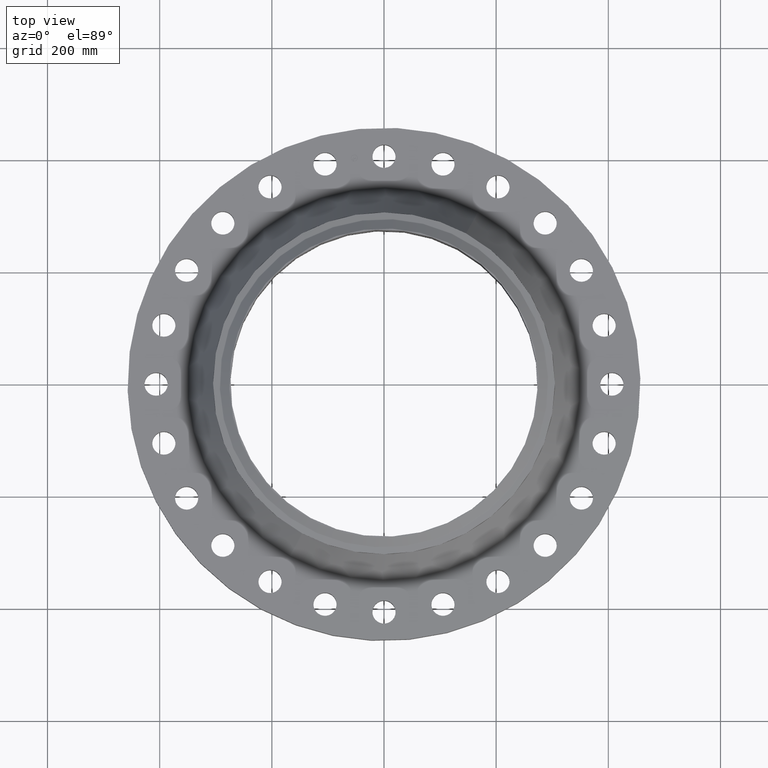
[diagram: clean part render]
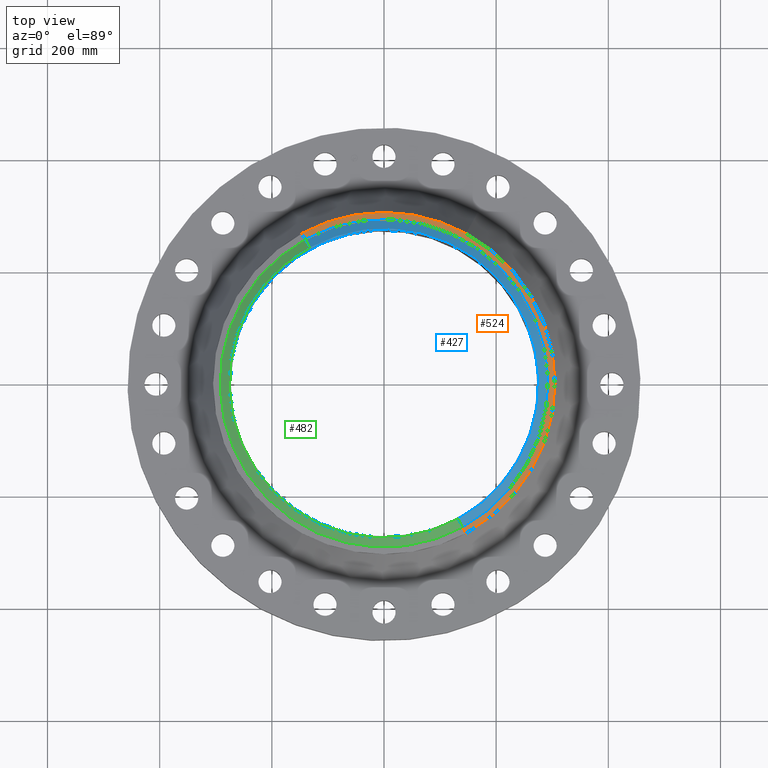
[diagram: same view with three faces highlighted in distinct colors, each labeled with its STEP entity id]
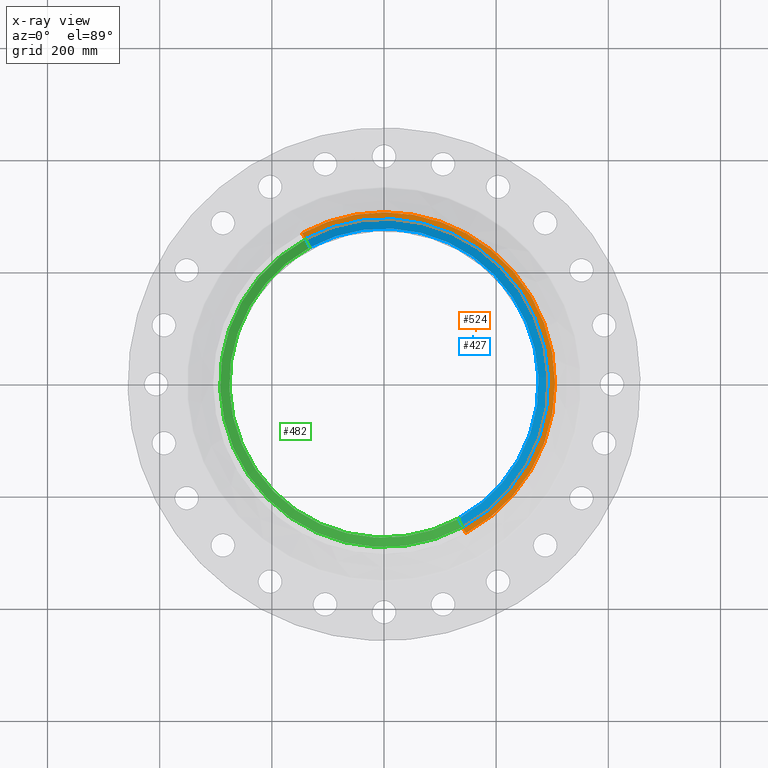
[diagram: x-ray of the same camera — body ghosted, the three highlighted faces saturated]
A machine part, top view with three faces highlighted in distinct colors.
The next image is the same camera in x-ray (body ghosted, the three faces saturated) — at least one of them is partly hidden behind the body in this view.
Their STEP definitions:

[orange] entity #524 — the highlighted conical surface has half-angle 80 deg.
#285=AXIS2_PLACEMENT_3D('Circle Axis2P3D',#283,#284,$) ;
#312=AXIS2_PLACEMENT_3D('Circle Axis2P3D',#310,#311,$) ;
#326=AXIS2_PLACEMENT_3D('Cone Axis2P3D',#323,#324,#325) ;
#495=AXIS2_PLACEMENT_3D('Circle Axis2P3D',#493,#494,$) ;
#280=CARTESIAN_POINT('Vertex',(5.75310646327,10.5309907427,5.9633902388)) ;
#283=CARTESIAN_POINT('Axis2P3D Location',(0.,0.,5.9633902388)) ;
#287=CARTESIAN_POINT('Vertex',(5.75310646327,-10.5309907427,5.9633902388)) ;
#307=CARTESIAN_POINT('Vertex',(-5.75310646327,10.5309907427,5.9633902388)) ;
#310=CARTESIAN_POINT('Axis2P3D Location',(0.,0.,5.9633902388)) ;
#323=CARTESIAN_POINT('Axis2P3D Location',(0.,0.,6.04141601924)) ;
#328=CARTESIAN_POINT('Line Origine',(5.64703207902,-10.3368228848,6.00240312902)) ;
#332=CARTESIAN_POINT('Vertex',(5.54095769476,-10.1426550268,6.04141601924)) ;
#339=CARTESIAN_POINT('Vertex',(-5.54095769476,10.1426550268,6.04141601924)) ;
#342=CARTESIAN_POINT('Line Origine',(-5.64703207902,10.3368228848,6.00240312902)) ;
#493=CARTESIAN_POINT('Axis2P3D Location',(0.,0.,6.04141601924)) ;
#284=DIRECTION('Axis2P3D Direction',(0.,0.,-0.0393700787402)) ;
#311=DIRECTION('Axis2P3D Direction',(0.,0.,-0.0393700787402)) ;
#324=DIRECTION('Axis2P3D Direction',(-0.,-0.,-0.0393700787402)) ;
#325=DIRECTION('Axis2P3D XDirection',(-0.0188750212049,0.0345504945626,0.)) ;
#329=DIRECTION('Vector Direction',(0.0185882672208,-0.0340255949157,-0.00683654242783)) ;
#343=DIRECTION('Vector Direction',(-0.0185882672208,0.0340255949157,-0.00683654242783)) ;
#494=DIRECTION('Axis2P3D Direction',(0.,0.,0.0393700787402)) ;
#330=VECTOR('Line Direction',#329,0.0393700787402) ;
#344=VECTOR('Line Direction',#343,0.0393700787402) ;
#518=ORIENTED_EDGE('',*,*,#346,.F.) ;
#519=ORIENTED_EDGE('',*,*,#497,.F.) ;
#520=ORIENTED_EDGE('',*,*,#334,.T.) ;
#521=ORIENTED_EDGE('',*,*,#289,.T.) ;
#522=ORIENTED_EDGE('',*,*,#314,.F.) ;
#524=ADVANCED_FACE('PartBody',(#523),#327,.T.) ;
#286=CIRCLE('generated circle',#285,12.) ;
#313=CIRCLE('generated circle',#312,12.) ;
#496=CIRCLE('generated circle',#495,11.55749381) ;
#327=CONICAL_SURFACE('Cone',#326,11.55749381,1.3962634016) ;
#289=EDGE_CURVE('',#288,#281,#286,.F.) ;
#314=EDGE_CURVE('',#308,#281,#313,.T.) ;
#334=EDGE_CURVE('',#333,#288,#331,.T.) ;
#346=EDGE_CURVE('',#340,#308,#345,.T.) ;
#497=EDGE_CURVE('',#333,#340,#496,.T.) ;
#517=EDGE_LOOP('',(#518,#519,#520,#521,#522)) ;
#523=FACE_OUTER_BOUND('',#517,.T.) ;
#331=LINE('Line',#328,#330) ;
#345=LINE('Line',#342,#344) ;
#281=VERTEX_POINT('',#280) ;
#288=VERTEX_POINT('',#287) ;
#308=VERTEX_POINT('',#307) ;
#333=VERTEX_POINT('',#332) ;
#340=VERTEX_POINT('',#339) ;

[blue] entity #427 — the highlighted conical surface has half-angle 52.5 deg.
#362=AXIS2_PLACEMENT_3D('Circle Axis2P3D',#360,#361,$) ;
#400=AXIS2_PLACEMENT_3D('Cone Axis2P3D',#397,#398,#399) ;
#411=AXIS2_PLACEMENT_3D('Circle Axis2P3D',#409,#410,$) ;
#360=CARTESIAN_POINT('Axis2P3D Location',(0.,0.,6.56000000003)) ;
#364=CARTESIAN_POINT('Vertex',(5.20643677412,-9.5303185889,6.56000000003)) ;
#366=CARTESIAN_POINT('Vertex',(-5.20643677412,9.5303185889,6.56000000003)) ;
#397=CARTESIAN_POINT('Axis2P3D Location',(0.,0.,6.56000000003)) ;
#402=CARTESIAN_POINT('Line Origine',(5.36137807667,-9.81393674081,6.31201437259)) ;
#406=CARTESIAN_POINT('Vertex',(5.51631937922,-10.0975548927,6.06402874516)) ;
#409=CARTESIAN_POINT('Axis2P3D Location',(0.,0.,6.06402874516)) ;
#413=CARTESIAN_POINT('Vertex',(-5.51631937922,10.0975548927,6.06402874516)) ;
#416=CARTESIAN_POINT('Line Origine',(-5.36137807667,9.81393674081,6.31201437259)) ;
#361=DIRECTION('Axis2P3D Direction',(0.,0.,-0.0393700787402)) ;
#398=DIRECTION('Axis2P3D Direction',(-0.,-0.,-0.0393700787402)) ;
#399=DIRECTION('Axis2P3D XDirection',(0.0188750212049,-0.0345504945626,0.)) ;
#403=DIRECTION('Vector Direction',(0.014974561121,-0.02741075027,-0.023966985394)) ;
#410=DIRECTION('Axis2P3D Direction',(0.,0.,-0.0393700787402)) ;
#417=DIRECTION('Vector Direction',(-0.014974561121,0.02741075027,-0.023966985394)) ;
#404=VECTOR('Line Direction',#403,0.0393700787402) ;
#418=VECTOR('Line Direction',#417,0.0393700787402) ;
#422=ORIENTED_EDGE('',*,*,#368,.F.) ;
#423=ORIENTED_EDGE('',*,*,#408,.T.) ;
#424=ORIENTED_EDGE('',*,*,#415,.T.) ;
#425=ORIENTED_EDGE('',*,*,#420,.F.) ;
#427=ADVANCED_FACE('PartBody',(#426),#401,.T.) ;
#363=CIRCLE('generated circle',#362,10.8597401575) ;
#412=CIRCLE('generated circle',#411,11.5061024811) ;
#401=CONICAL_SURFACE('Cone',#400,10.8597401575,0.916297857297) ;
#368=EDGE_CURVE('',#365,#367,#363,.F.) ;
#408=EDGE_CURVE('',#365,#407,#405,.T.) ;
#415=EDGE_CURVE('',#407,#414,#412,.F.) ;
#420=EDGE_CURVE('',#367,#414,#419,.T.) ;
#421=EDGE_LOOP('',(#422,#423,#424,#425)) ;
#426=FACE_OUTER_BOUND('',#421,.T.) ;
#405=LINE('Line',#402,#404) ;
#419=LINE('Line',#416,#418) ;
#365=VERTEX_POINT('',#364) ;
#367=VERTEX_POINT('',#366) ;
#407=VERTEX_POINT('',#406) ;
#414=VERTEX_POINT('',#413) ;

[green] entity #482 — the highlighted conical surface has half-angle 52.5 deg.
#371=AXIS2_PLACEMENT_3D('Circle Axis2P3D',#369,#370,$) ;
#400=AXIS2_PLACEMENT_3D('Cone Axis2P3D',#397,#398,#399) ;
#473=AXIS2_PLACEMENT_3D('Circle Axis2P3D',#471,#472,$) ;
#364=CARTESIAN_POINT('Vertex',(5.20643677412,-9.5303185889,6.56000000003)) ;
#366=CARTESIAN_POINT('Vertex',(-5.20643677412,9.5303185889,6.56000000003)) ;
#369=CARTESIAN_POINT('Axis2P3D Location',(0.,0.,6.56000000003)) ;
#397=CARTESIAN_POINT('Axis2P3D Location',(0.,0.,6.56000000003)) ;
#402=CARTESIAN_POINT('Line Origine',(5.36137807667,-9.81393674081,6.31201437259)) ;
#406=CARTESIAN_POINT('Vertex',(5.51631937922,-10.0975548927,6.06402874516)) ;
#413=CARTESIAN_POINT('Vertex',(-5.51631937922,10.0975548927,6.06402874516)) ;
#416=CARTESIAN_POINT('Line Origine',(-5.36137807667,9.81393674081,6.31201437259)) ;
#471=CARTESIAN_POINT('Axis2P3D Location',(0.,0.,6.06402874516)) ;
#370=DIRECTION('Axis2P3D Direction',(0.,0.,-0.0393700787402)) ;
#398=DIRECTION('Axis2P3D Direction',(-0.,-0.,-0.0393700787402)) ;
#399=DIRECTION('Axis2P3D XDirection',(0.0188750212049,-0.0345504945626,0.)) ;
#403=DIRECTION('Vector Direction',(0.014974561121,-0.02741075027,-0.023966985394)) ;
#417=DIRECTION('Vector Direction',(-0.014974561121,0.02741075027,-0.023966985394)) ;
#472=DIRECTION('Axis2P3D Direction',(0.,0.,-0.0393700787402)) ;
#404=VECTOR('Line Direction',#403,0.0393700787402) ;
#418=VECTOR('Line Direction',#417,0.0393700787402) ;
#477=ORIENTED_EDGE('',*,*,#373,.F.) ;
#478=ORIENTED_EDGE('',*,*,#420,.T.) ;
#479=ORIENTED_EDGE('',*,*,#475,.T.) ;
#480=ORIENTED_EDGE('',*,*,#408,.F.) ;
#482=ADVANCED_FACE('PartBody',(#481),#401,.T.) ;
#372=CIRCLE('generated circle',#371,10.8597401575) ;
#474=CIRCLE('generated circle',#473,11.5061024811) ;
#401=CONICAL_SURFACE('Cone',#400,10.8597401575,0.916297857297) ;
#373=EDGE_CURVE('',#367,#365,#372,.F.) ;
#408=EDGE_CURVE('',#365,#407,#405,.T.) ;
#420=EDGE_CURVE('',#367,#414,#419,.T.) ;
#475=EDGE_CURVE('',#414,#407,#474,.F.) ;
#476=EDGE_LOOP('',(#477,#478,#479,#480)) ;
#481=FACE_OUTER_BOUND('',#476,.T.) ;
#405=LINE('Line',#402,#404) ;
#419=LINE('Line',#416,#418) ;
#365=VERTEX_POINT('',#364) ;
#367=VERTEX_POINT('',#366) ;
#407=VERTEX_POINT('',#406) ;
#414=VERTEX_POINT('',#413) ;